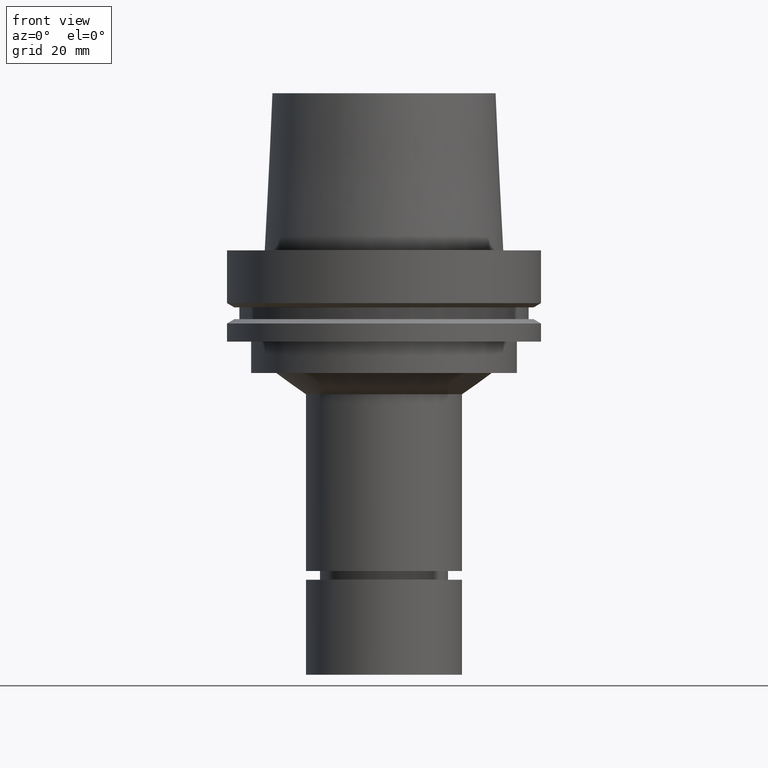
[diagram: clean part render]
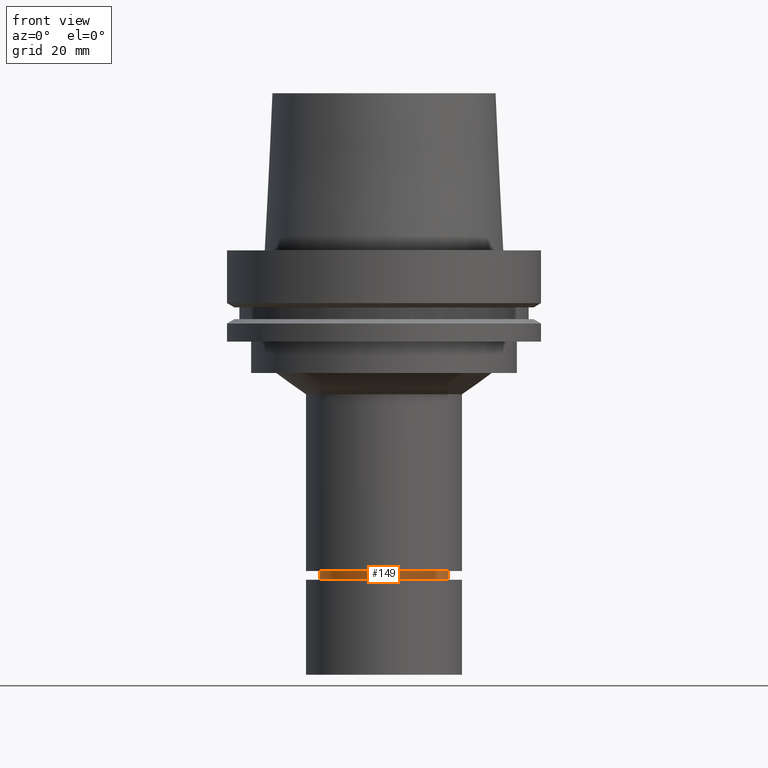
[diagram: same view with one face highlighted and labeled with its STEP entity id]
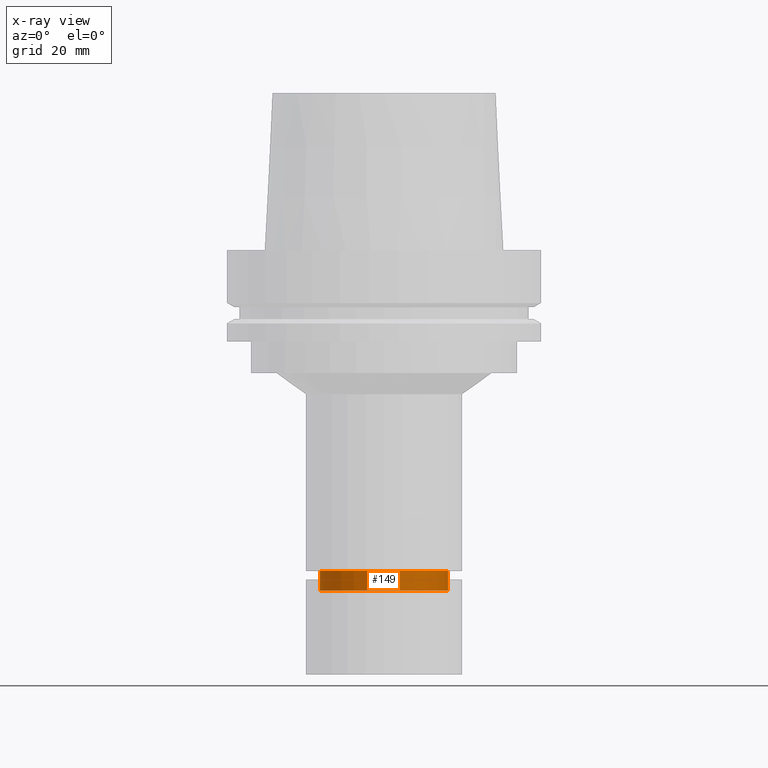
[diagram: x-ray of the same camera — body ghosted, the highlighted face saturated]
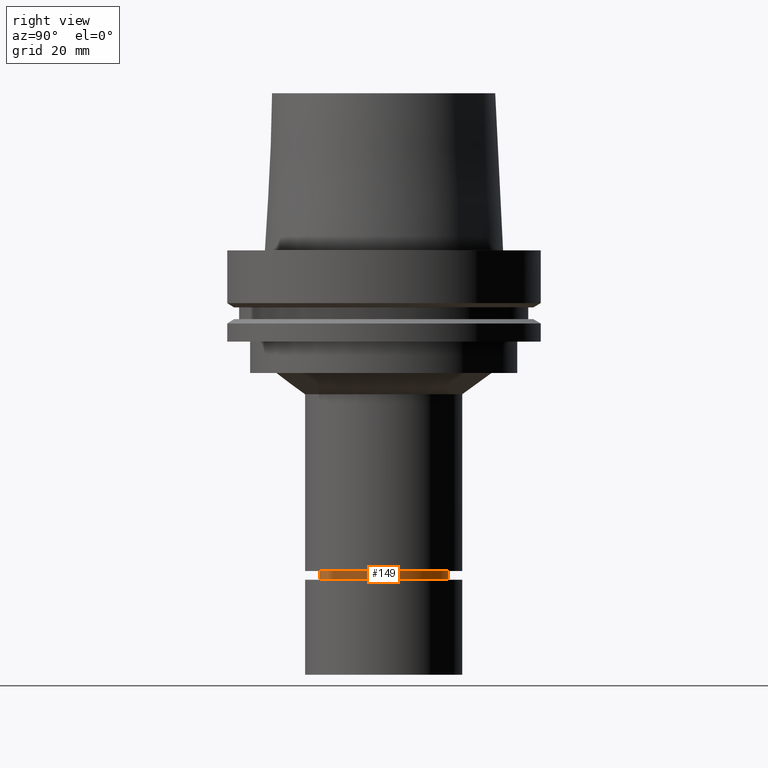
[diagram: same view with one face highlighted and labeled with its STEP entity id]
A machine part, front view. The second image highlights one B-rep face of the part: STEP entity #149.
The next image is the same camera in x-ray: the body ghosted, the highlighted face saturated — about 0% of this face is hidden behind the body in this view.
A second angle (right view) of the same face is appended — the face is thin or edge-on in the first view.
In plain terms, the highlighted cylindrical surface (bore or boss wall) has radius 20.5 mm, axis along (0, 0, -1).
Its self-contained STEP definition (entity closure, byte-faithful):
#129=EDGE_CURVE('Unnamed[1]',#295,#295,#296,.T.);
#133=EDGE_CURVE('Unnamed[1]',#301,#301,#302,.T.);
#149=ADVANCED_FACE('Unnamed[1]',(#326,#327),#328,.T.);
#295=VERTEX_POINT('',#513);
#296=CIRCLE('',#514,20.4999999999911);
#301=VERTEX_POINT('',#521);
#302=CIRCLE('',#522,20.5000000000012);
#326=FACE_BOUND('',#552,.T.);
#327=FACE_BOUND('',#553,.T.);
#328=CYLINDRICAL_SURFACE('',#554,20.4999999999961);
#513=CARTESIAN_POINT('',(6.24570832399483E-015,20.4999999999911,-102.000157569404));
#514=AXIS2_PLACEMENT_3D('',#735,#736,#737);
#521=CARTESIAN_POINT('',(6.62604227973845E-015,20.5000000000012,-108.211482434801));
#522=AXIS2_PLACEMENT_3D('',#741,#742,#743);
#552=EDGE_LOOP('',(#769));
#553=EDGE_LOOP('',(#770));
#554=AXIS2_PLACEMENT_3D('',#771,#772,#773);
#735=CARTESIAN_POINT('',(6.24570832399483E-015,1.24914166479896E-014,-102.000157569404));
#736=DIRECTION('',(6.12323399573677E-017,1.2246467991476E-016,-1.0));
#737=DIRECTION('',(-1.23259516440793E-032,1.0,1.2246467991476E-016));
#741=CARTESIAN_POINT('',(6.62604227973845E-015,1.32520845594769E-014,-108.211482434801));
#742=DIRECTION('',(6.12323399573677E-017,1.22464679914699E-016,-1.0));
#743=DIRECTION('',(-1.23259516440776E-032,1.0,1.22464679914699E-016));
#769=ORIENTED_EDGE('',*,*,#133,.F.);
#770=ORIENTED_EDGE('',*,*,#129,.T.);
#771=CARTESIAN_POINT('',(6.43587530186664E-015,1.28717506037333E-014,-105.105820002103));
#772=DIRECTION('',(6.12323399573676E-017,1.22464679914729E-016,-1.0));
#773=DIRECTION('',(-1.23259516440763E-032,1.0,1.22464679914729E-016));